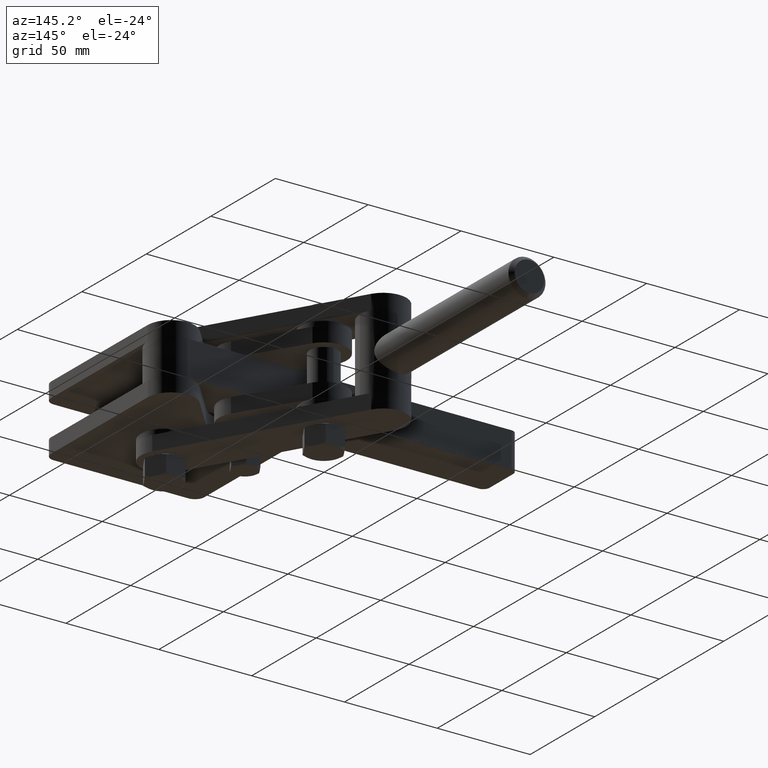
[diagram: clean part render]
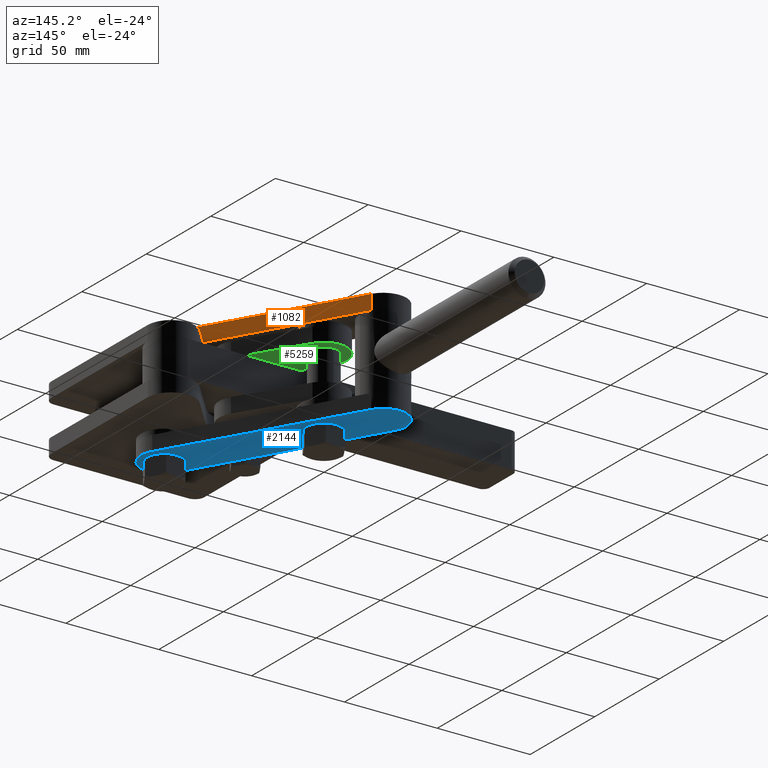
[diagram: same view with three faces highlighted in distinct colors, each labeled with its STEP entity id]
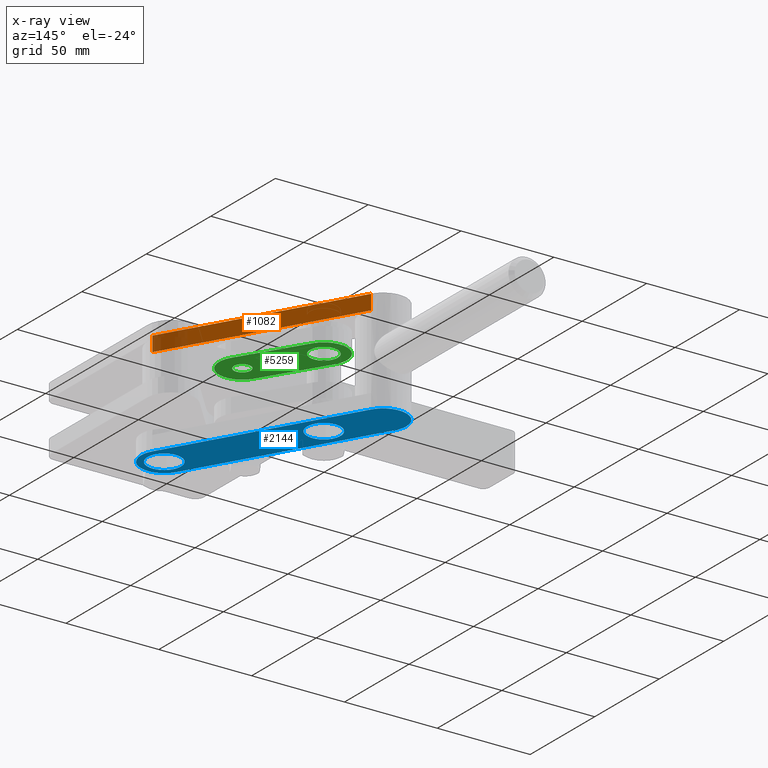
[diagram: x-ray of the same camera — body ghosted, the three highlighted faces saturated]
A machine part, auxiliary view with three faces highlighted in distinct colors.
The next image is the same camera in x-ray (body ghosted, the three faces saturated) — at least one of them is partly hidden behind the body in this view.
Their STEP definitions:

[orange] entity #1082 — the highlighted planar face has unit normal (-0.866, -0.5, -0).
#46 = CARTESIAN_POINT ( 'NONE',  ( 55.82528807929028100, 47.15005103982150600, 18.50000000000000000 ) ) ;
#318 = LINE ( 'NONE', #46, #3210 ) ;
#439 = PLANE ( 'NONE',  #5779 ) ;
#492 = DIRECTION ( 'NONE',  ( -0.5000040831857016600, 0.8660230463432401200, 5.349708482662460800E-017 ) ) ;
#563 = LINE ( 'NONE', #7375, #6339 ) ;
#715 = ORIENTED_EDGE ( 'NONE', *, *, #3984, .F. ) ;
#905 = CARTESIAN_POINT ( 'NONE',  ( 2.324851178420191300, 139.8145169985482100, 18.50000000000000400 ) ) ;
#1082 = ADVANCED_FACE ( 'NONE', ( #5737 ), #439, .F. ) ;
#1366 = EDGE_CURVE ( 'NONE', #7333, #1730, #318, .T. ) ;
#1596 = CARTESIAN_POINT ( 'NONE',  ( 2.324851178420232600, 139.8145169985482700, 10.50000000000000500 ) ) ;
#1730 = VERTEX_POINT ( 'NONE', #2022 ) ;
#2021 = VERTEX_POINT ( 'NONE', #1596 ) ;
#2022 = CARTESIAN_POINT ( 'NONE',  ( 55.82528807929028100, 47.15005103982150600, 10.50000000000000000 ) ) ;
#2106 = CARTESIAN_POINT ( 'NONE',  ( 16.82496959080551900, 114.6998486545942900, 10.50000000000000400 ) ) ;
#2545 = CARTESIAN_POINT ( 'NONE',  ( 55.82528807929028100, 47.15005103982150600, 18.50000000000000000 ) ) ;
#3106 = LINE ( 'NONE', #2545, #3308 ) ;
#3210 = VECTOR ( 'NONE', #4100, 1000.000000000000000 ) ;
#3308 = VECTOR ( 'NONE', #5994, 1000.000000000000200 ) ;
#3517 = ORIENTED_EDGE ( 'NONE', *, *, #7041, .T. ) ;
#3697 = EDGE_LOOP ( 'NONE', ( #3939, #3517, #5484, #715, #6318 ) ) ;
#3754 = VECTOR ( 'NONE', #3821, 1000.000000000000000 ) ;
#3821 = DIRECTION ( 'NONE',  ( 9.264865638541651100E-017, 1.152645899465341200E-016, -1.000000000000000000 ) ) ;
#3874 = DIRECTION ( 'NONE',  ( -0.8660230463432402300, -0.5000040831857017800, -1.378686372624991600E-016 ) ) ;
#3929 = DIRECTION ( 'NONE',  ( -0.5000040831857016600, 0.8660230463432401200, 5.349708482662460800E-017 ) ) ;
#3939 = ORIENTED_EDGE ( 'NONE', *, *, #4718, .T. ) ;
#3958 = CARTESIAN_POINT ( 'NONE',  ( 55.82528807929028100, 47.15005103982150600, 10.50000000000000000 ) ) ;
#3984 = EDGE_CURVE ( 'NONE', #7333, #6692, #3106, .T. ) ;
#4086 = EDGE_CURVE ( 'NONE', #6692, #2021, #5107, .T. ) ;
#4100 = DIRECTION ( 'NONE',  ( 9.264865638541651100E-017, 1.152645899465341200E-016, -1.000000000000000000 ) ) ;
#4464 = CARTESIAN_POINT ( 'NONE',  ( 55.82528807929028100, 47.15005103982150600, 18.50000000000000000 ) ) ;
#4718 = EDGE_CURVE ( 'NONE', #1730, #5053, #563, .T. ) ;
#4905 = VECTOR ( 'NONE', #492, 1000.000000000000200 ) ;
#5053 = VERTEX_POINT ( 'NONE', #2106 ) ;
#5107 = LINE ( 'NONE', #905, #3754 ) ;
#5484 = ORIENTED_EDGE ( 'NONE', *, *, #4086, .F. ) ;
#5737 = FACE_OUTER_BOUND ( 'NONE', #3697, .T. ) ;
#5779 = AXIS2_PLACEMENT_3D ( 'NONE', #4464, #3874, #7317 ) ;
#5858 = CARTESIAN_POINT ( 'NONE',  ( 2.324851178420191300, 139.8145169985482100, 18.50000000000000400 ) ) ;
#5994 = DIRECTION ( 'NONE',  ( -0.5000040831857016600, 0.8660230463432401200, 5.349708482662460800E-017 ) ) ;
#6318 = ORIENTED_EDGE ( 'NONE', *, *, #1366, .T. ) ;
#6339 = VECTOR ( 'NONE', #3929, 1000.000000000000200 ) ;
#6427 = LINE ( 'NONE', #3958, #4905 ) ;
#6692 = VERTEX_POINT ( 'NONE', #5858 ) ;
#6960 = CARTESIAN_POINT ( 'NONE',  ( 55.82528807929028100, 47.15005103982150600, 18.50000000000000000 ) ) ;
#7041 = EDGE_CURVE ( 'NONE', #5053, #2021, #6427, .T. ) ;
#7317 = DIRECTION ( 'NONE',  ( 9.264865638541651100E-017, 1.152645899465341200E-016, -1.000000000000000000 ) ) ;
#7333 = VERTEX_POINT ( 'NONE', #6960 ) ;
#7375 = CARTESIAN_POINT ( 'NONE',  ( 55.82528807929028100, 47.15005103982150600, 10.50000000000000000 ) ) ;

[blue] entity #2144 — the highlighted planar face has unit normal (0, 0, -1).
#34 = CARTESIAN_POINT ( 'NONE',  ( 45.00000000000000000, 40.90000000000005500, -37.50000000000000700 ) ) ;
#124 = CARTESIAN_POINT ( 'NONE',  ( 45.00000000000001400, 40.90000000000000600, -37.50000000000000700 ) ) ;
#261 = DIRECTION ( 'NONE',  ( -0.0000000000000000000, -0.0000000000000000000, 1.000000000000000000 ) ) ;
#335 = CARTESIAN_POINT ( 'NONE',  ( 5.999681511515055000, 108.4497976147729900, -37.50000000000000700 ) ) ;
#450 = EDGE_CURVE ( 'NONE', #7421, #6977, #7386, .T. ) ;
#572 = DIRECTION ( 'NONE',  ( 0.5000040831857014400, -0.8660230463432402300, 0.0000000000000000000 ) ) ;
#584 = CIRCLE ( 'NONE', #4351, 9.000000000000003600 ) ;
#592 = VERTEX_POINT ( 'NONE', #6222 ) ;
#669 = CARTESIAN_POINT ( 'NONE',  ( 34.17471192070951200, 34.64994896017874000, -37.50000000000000700 ) ) ;
#670 = PLANE ( 'NONE',  #7165 ) ;
#687 = VERTEX_POINT ( 'NONE', #3228 ) ;
#698 = DIRECTION ( 'NONE',  ( 0.5000040831857014400, -0.8660230463432402300, 0.0000000000000000000 ) ) ;
#779 = CARTESIAN_POINT ( 'NONE',  ( 45.00000000000000000, 40.90000000000005500, -37.50000000000000700 ) ) ;
#838 = VECTOR ( 'NONE', #572, 1000.000000000000200 ) ;
#840 = CARTESIAN_POINT ( 'NONE',  ( 5.999681511515055000, 108.4497976147729900, -37.50000000000000700 ) ) ;
#912 = DIRECTION ( 'NONE',  ( -0.8660254037844358200, -0.5000000000000050000, 0.0000000000000000000 ) ) ;
#952 = FACE_BOUND ( 'NONE', #1114, .T. ) ;
#991 = DIRECTION ( 'NONE',  ( -0.0000000000000000000, -0.0000000000000000000, 1.000000000000000000 ) ) ;
#994 = EDGE_CURVE ( 'NONE', #2323, #6332, #5468, .T. ) ;
#1038 = CARTESIAN_POINT ( 'NONE',  ( -21.00043690087005300, 133.5644659587267700, -37.50000000000000700 ) ) ;
#1075 = AXIS2_PLACEMENT_3D ( 'NONE', #6250, #2806, #6821 ) ;
#1114 = EDGE_LOOP ( 'NONE', ( #6122, #1984, #3174, #1283, #6118, #7328 ) ) ;
#1150 = ORIENTED_EDGE ( 'NONE', *, *, #450, .F. ) ;
#1183 = CARTESIAN_POINT ( 'NONE',  ( 34.17471192070951200, 34.64994896017874000, -37.50000000000000700 ) ) ;
#1248 = EDGE_CURVE ( 'NONE', #6977, #4270, #1418, .T. ) ;
#1253 = CIRCLE ( 'NONE', #4602, 8.999999999999998200 ) ;
#1283 = ORIENTED_EDGE ( 'NONE', *, *, #6670, .T. ) ;
#1385 = DIRECTION ( 'NONE',  ( -0.8660254037844367100, -0.5000000000000035500, 0.0000000000000000000 ) ) ;
#1418 = LINE ( 'NONE', #3717, #4499 ) ;
#1438 = CARTESIAN_POINT ( 'NONE',  ( 5.999681509480684100, 117.4497976147470400, -37.50000000000000700 ) ) ;
#1440 = CARTESIAN_POINT ( 'NONE',  ( 5.999681511515055000, 108.4497976147729900, -37.50000000000000700 ) ) ;
#1451 = DIRECTION ( 'NONE',  ( -0.8660254037844393700, -0.4999999999999986100, 0.0000000000000000000 ) ) ;
#1464 = ORIENTED_EDGE ( 'NONE', *, *, #994, .F. ) ;
#1500 = AXIS2_PLACEMENT_3D ( 'NONE', #4463, #991, #5024 ) ;
#1523 = CARTESIAN_POINT ( 'NONE',  ( 45.00000000022370000, 31.90000000002601200, -37.49999999998501500 ) ) ;
#1640 = CARTESIAN_POINT ( 'NONE',  ( 37.20577136599056400, 36.39999999991256600, -37.50000000000000700 ) ) ;
#1684 = CARTESIAN_POINT ( 'NONE',  ( 44.99999999796562400, 49.89999999997409900, -37.50000000000000700 ) ) ;
#1728 = VERTEX_POINT ( 'NONE', #6611 ) ;
#1794 = CIRCLE ( 'NONE', #6929, 9.000000000000000000 ) ;
#1798 = AXIS2_PLACEMENT_3D ( 'NONE', #6097, #2645, #6671 ) ;
#1865 = DIRECTION ( 'NONE',  ( -0.0000000000000000000, -0.0000000000000000000, 1.000000000000000000 ) ) ;
#1904 = ORIENTED_EDGE ( 'NONE', *, *, #6037, .T. ) ;
#1980 = DIRECTION ( 'NONE',  ( -0.0000000000000000000, -0.0000000000000000000, 1.000000000000000000 ) ) ;
#1984 = ORIENTED_EDGE ( 'NONE', *, *, #5044, .F. ) ;
#2017 = DIRECTION ( 'NONE',  ( -0.8660254037844384900, -0.5000000000000004400, 0.0000000000000000000 ) ) ;
#2018 = ORIENTED_EDGE ( 'NONE', *, *, #1248, .F. ) ;
#2119 = CIRCLE ( 'NONE', #6902, 9.000000000000000000 ) ;
#2144 = ADVANCED_FACE ( 'NONE', ( #5733, #4034, #952 ), #670, .T. ) ;
#2172 = AXIS2_PLACEMENT_3D ( 'NONE', #3723, #261, #4321 ) ;
#2234 = ORIENTED_EDGE ( 'NONE', *, *, #5528, .T. ) ;
#2323 = VERTEX_POINT ( 'NONE', #3798 ) ;
#2503 = VERTEX_POINT ( 'NONE', #1640 ) ;
#2520 = DIRECTION ( 'NONE',  ( -0.5000040831857014400, 0.8660230463432402300, 0.0000000000000000000 ) ) ;
#2533 = AXIS2_PLACEMENT_3D ( 'NONE', #1440, #5452, #2017 ) ;
#2576 = EDGE_CURVE ( 'NONE', #4715, #7421, #3934, .T. ) ;
#2636 = ORIENTED_EDGE ( 'NONE', *, *, #3675, .T. ) ;
#2645 = DIRECTION ( 'NONE',  ( 0.0000000000000000000, 0.0000000000000000000, -1.000000000000000000 ) ) ;
#2737 = CARTESIAN_POINT ( 'NONE',  ( 45.00000000000000000, 40.90000000000005500, -37.50000000000000700 ) ) ;
#2762 = CARTESIAN_POINT ( 'NONE',  ( 52.79422863498290800, 45.39999999840144100, -37.50000000000000700 ) ) ;
#2806 = DIRECTION ( 'NONE',  ( 0.0000000000000000000, 0.0000000000000000000, 1.000000000000000000 ) ) ;
#2871 = DIRECTION ( 'NONE',  ( 0.0000000000000000000, 0.0000000000000000000, 1.000000000000000000 ) ) ;
#2933 = VERTEX_POINT ( 'NONE', #1038 ) ;
#2943 = DIRECTION ( 'NONE',  ( -0.0000000000000000000, -0.0000000000000000000, 1.000000000000000000 ) ) ;
#3092 = CIRCLE ( 'NONE', #4682, 9.000000000000005300 ) ;
#3138 = VERTEX_POINT ( 'NONE', #7020 ) ;
#3174 = ORIENTED_EDGE ( 'NONE', *, *, #4532, .T. ) ;
#3228 = CARTESIAN_POINT ( 'NONE',  ( 13.79391014493941000, 103.9497976137240400, -37.50000000000000700 ) ) ;
#3249 = AXIS2_PLACEMENT_3D ( 'NONE', #6394, #2943, #6965 ) ;
#3277 = CARTESIAN_POINT ( 'NONE',  ( -8.500436900870056400, 133.5644659587267400, -37.50000000000000700 ) ) ;
#3325 = DIRECTION ( 'NONE',  ( -0.8660254037844393700, -0.4999999999999987200, 0.0000000000000000000 ) ) ;
#3366 = ORIENTED_EDGE ( 'NONE', *, *, #4140, .T. ) ;
#3495 = EDGE_CURVE ( 'NONE', #4762, #6044, #1794, .T. ) ;
#3511 = DIRECTION ( 'NONE',  ( 0.0000000000000000000, 0.0000000000000000000, -1.000000000000000000 ) ) ;
#3550 = EDGE_CURVE ( 'NONE', #3138, #1728, #7187, .T. ) ;
#3558 = EDGE_CURVE ( 'NONE', #1728, #6304, #7380, .T. ) ;
#3675 = EDGE_CURVE ( 'NONE', #7018, #4762, #584, .T. ) ;
#3717 = CARTESIAN_POINT ( 'NONE',  ( 55.82528807929050900, 47.15005103982127100, -37.50000000000000700 ) ) ;
#3723 = CARTESIAN_POINT ( 'NONE',  ( 5.999681511515055000, 108.4497976147729900, -37.50000000000000700 ) ) ;
#3798 = CARTESIAN_POINT ( 'NONE',  ( 52.79422863342435300, 36.39999999895108800, -37.50000000000000700 ) ) ;
#3864 = DIRECTION ( 'NONE',  ( 0.5000040831857012200, -0.8660230463432404500, 0.0000000000000000000 ) ) ;
#3934 = LINE ( 'NONE', #1183, #838 ) ;
#4034 = FACE_OUTER_BOUND ( 'NONE', #5735, .T. ) ;
#4069 = AXIS2_PLACEMENT_3D ( 'NONE', #3277, #7306, #3864 ) ;
#4070 = CARTESIAN_POINT ( 'NONE',  ( 37.20577136565267300, 45.39999999945039400, -37.50000000000000700 ) ) ;
#4140 = EDGE_CURVE ( 'NONE', #2503, #6332, #6274, .T. ) ;
#4184 = DIRECTION ( 'NONE',  ( 0.0000000000000000000, 0.0000000000000000000, -1.000000000000000000 ) ) ;
#4226 = CIRCLE ( 'NONE', #4069, 12.50000000000000200 ) ;
#4270 = VERTEX_POINT ( 'NONE', #5168 ) ;
#4303 = AXIS2_PLACEMENT_3D ( 'NONE', #6881, #2871, #6320 ) ;
#4321 = DIRECTION ( 'NONE',  ( -0.8660254037844411500, -0.4999999999999958400, 0.0000000000000000000 ) ) ;
#4351 = AXIS2_PLACEMENT_3D ( 'NONE', #2737, #6757, #3325 ) ;
#4394 = DIRECTION ( 'NONE',  ( -0.0000000000000000000, -0.0000000000000000000, 1.000000000000000000 ) ) ;
#4463 = CARTESIAN_POINT ( 'NONE',  ( 45.00000000000000000, 40.90000000000005500, -37.50000000000000700 ) ) ;
#4499 = VECTOR ( 'NONE', #2520, 1000.000000000000200 ) ;
#4532 = EDGE_CURVE ( 'NONE', #687, #592, #3092, .T. ) ;
#4602 = AXIS2_PLACEMENT_3D ( 'NONE', #5412, #1980, #5985 ) ;
#4682 = AXIS2_PLACEMENT_3D ( 'NONE', #840, #4893, #1451 ) ;
#4715 = VERTEX_POINT ( 'NONE', #6782 ) ;
#4762 = VERTEX_POINT ( 'NONE', #1684 ) ;
#4834 = DIRECTION ( 'NONE',  ( -0.0000000000000000000, -0.0000000000000000000, 1.000000000000000000 ) ) ;
#4893 = DIRECTION ( 'NONE',  ( -0.0000000000000000000, -0.0000000000000000000, 1.000000000000000000 ) ) ;
#5024 = DIRECTION ( 'NONE',  ( -0.8660254037844383700, -0.5000000000000004400, 0.0000000000000000000 ) ) ;
#5031 = CARTESIAN_POINT ( 'NONE',  ( 55.82528807929050900, 47.15005103982127100, -37.50000000000000700 ) ) ;
#5044 = EDGE_CURVE ( 'NONE', #687, #6304, #5471, .T. ) ;
#5091 = CIRCLE ( 'NONE', #5136, 9.000000000000000000 ) ;
#5136 = AXIS2_PLACEMENT_3D ( 'NONE', #5298, #1865, #5879 ) ;
#5168 = CARTESIAN_POINT ( 'NONE',  ( 2.324851178420444400, 139.8145169985479900, -37.50000000000000700 ) ) ;
#5286 = ORIENTED_EDGE ( 'NONE', *, *, #5910, .F. ) ;
#5298 = CARTESIAN_POINT ( 'NONE',  ( 5.999681511515055000, 108.4497976147729900, -37.50000000000000700 ) ) ;
#5412 = CARTESIAN_POINT ( 'NONE',  ( 45.00000000000000000, 40.90000000000005500, -37.50000000000000700 ) ) ;
#5452 = DIRECTION ( 'NONE',  ( -0.0000000000000000000, -0.0000000000000000000, 1.000000000000000000 ) ) ;
#5468 = CIRCLE ( 'NONE', #5919, 8.999999999999998200 ) ;
#5471 = CIRCLE ( 'NONE', #1798, 9.000000000000000000 ) ;
#5528 = EDGE_CURVE ( 'NONE', #6044, #2503, #1253, .T. ) ;
#5677 = EDGE_CURVE ( 'NONE', #2933, #4715, #4226, .T. ) ;
#5733 = FACE_BOUND ( 'NONE', #6963, .T. ) ;
#5735 = EDGE_LOOP ( 'NONE', ( #1150, #6511, #6389, #5286, #2018 ) ) ;
#5879 = DIRECTION ( 'NONE',  ( -0.8660254037844393700, -0.4999999999999988900, 0.0000000000000000000 ) ) ;
#5910 = EDGE_CURVE ( 'NONE', #4270, #2933, #6895, .T. ) ;
#5919 = AXIS2_PLACEMENT_3D ( 'NONE', #34, #3511, #6947 ) ;
#5985 = DIRECTION ( 'NONE',  ( -0.8660254037844383700, -0.5000000000000004400, 0.0000000000000000000 ) ) ;
#6037 = EDGE_CURVE ( 'NONE', #2323, #7018, #6276, .T. ) ;
#6044 = VERTEX_POINT ( 'NONE', #4070 ) ;
#6097 = CARTESIAN_POINT ( 'NONE',  ( 5.999681511515055000, 108.4497976147729900, -37.50000000000000700 ) ) ;
#6118 = ORIENTED_EDGE ( 'NONE', *, *, #6912, .T. ) ;
#6122 = ORIENTED_EDGE ( 'NONE', *, *, #3558, .T. ) ;
#6222 = CARTESIAN_POINT ( 'NONE',  ( 13.79391014649796400, 112.9497976131743800, -37.50000000000000700 ) ) ;
#6250 = CARTESIAN_POINT ( 'NONE',  ( -8.500436900870056400, 133.5644659587267400, -37.50000000000000700 ) ) ;
#6274 = CIRCLE ( 'NONE', #1500, 8.999999999999998200 ) ;
#6276 = CIRCLE ( 'NONE', #3249, 8.999999999999998200 ) ;
#6304 = VERTEX_POINT ( 'NONE', #6639 ) ;
#6320 = DIRECTION ( 'NONE',  ( 0.5000040831857013300, -0.8660230463432403400, 0.0000000000000000000 ) ) ;
#6332 = VERTEX_POINT ( 'NONE', #1523 ) ;
#6389 = ORIENTED_EDGE ( 'NONE', *, *, #5677, .F. ) ;
#6394 = CARTESIAN_POINT ( 'NONE',  ( 45.00000000000000000, 40.90000000000005500, -37.50000000000000700 ) ) ;
#6511 = ORIENTED_EDGE ( 'NONE', *, *, #2576, .F. ) ;
#6611 = CARTESIAN_POINT ( 'NONE',  ( -1.794547122494382300, 103.9497976146855100, -37.50000000000000700 ) ) ;
#6639 = CARTESIAN_POINT ( 'NONE',  ( 5.999681511738756100, 99.44979761479895300, -37.49999999998501500 ) ) ;
#6670 = EDGE_CURVE ( 'NONE', #592, #6864, #5091, .T. ) ;
#6671 = DIRECTION ( 'NONE',  ( -0.8660254037844384900, -0.5000000000000004400, 0.0000000000000000000 ) ) ;
#6757 = DIRECTION ( 'NONE',  ( -0.0000000000000000000, -0.0000000000000000000, 1.000000000000000000 ) ) ;
#6782 = CARTESIAN_POINT ( 'NONE',  ( -19.32572498016055500, 127.3144149189054700, -37.50000000000000700 ) ) ;
#6821 = DIRECTION ( 'NONE',  ( 0.5000040831857012200, -0.8660230463432404500, 0.0000000000000000000 ) ) ;
#6864 = VERTEX_POINT ( 'NONE', #1438 ) ;
#6881 = CARTESIAN_POINT ( 'NONE',  ( 45.00000000000001400, 40.90000000000000600, -37.50000000000000700 ) ) ;
#6895 = CIRCLE ( 'NONE', #1075, 12.50000000000000200 ) ;
#6902 = AXIS2_PLACEMENT_3D ( 'NONE', #335, #4394, #912 ) ;
#6912 = EDGE_CURVE ( 'NONE', #6864, #3138, #2119, .T. ) ;
#6929 = AXIS2_PLACEMENT_3D ( 'NONE', #779, #4834, #1385 ) ;
#6947 = DIRECTION ( 'NONE',  ( -0.8660254037844383700, -0.5000000000000004400, 0.0000000000000000000 ) ) ;
#6951 = ORIENTED_EDGE ( 'NONE', *, *, #3495, .T. ) ;
#6963 = EDGE_LOOP ( 'NONE', ( #3366, #1464, #1904, #2636, #6951, #2234 ) ) ;
#6965 = DIRECTION ( 'NONE',  ( -0.8660254037844383700, -0.5000000000000004400, 0.0000000000000000000 ) ) ;
#6977 = VERTEX_POINT ( 'NONE', #5031 ) ;
#7018 = VERTEX_POINT ( 'NONE', #2762 ) ;
#7020 = CARTESIAN_POINT ( 'NONE',  ( -1.794547122832266500, 112.9497976142233300, -37.50000000000000700 ) ) ;
#7165 = AXIS2_PLACEMENT_3D ( 'NONE', #124, #4184, #698 ) ;
#7187 = CIRCLE ( 'NONE', #2172, 9.000000000000000000 ) ;
#7306 = DIRECTION ( 'NONE',  ( 0.0000000000000000000, 0.0000000000000000000, 1.000000000000000000 ) ) ;
#7328 = ORIENTED_EDGE ( 'NONE', *, *, #3550, .T. ) ;
#7380 = CIRCLE ( 'NONE', #2533, 9.000000000000000000 ) ;
#7386 = CIRCLE ( 'NONE', #4303, 12.49999999999999500 ) ;
#7421 = VERTEX_POINT ( 'NONE', #669 ) ;

[green] entity #5259 — the highlighted planar face has unit normal (-0, -0, 1).
#330 = DIRECTION ( 'NONE',  ( -0.5224985647159495800, 0.8526401643540918500, 9.857507598320749000E-020 ) ) ;
#431 = CIRCLE ( 'NONE', #5400, 4.500000000000003600 ) ;
#445 = ORIENTED_EDGE ( 'NONE', *, *, #4958, .F. ) ;
#513 = CIRCLE ( 'NONE', #6014, 4.500000000000003600 ) ;
#560 = ORIENTED_EDGE ( 'NONE', *, *, #3593, .F. ) ;
#619 = VERTEX_POINT ( 'NONE', #6741 ) ;
#702 = AXIS2_PLACEMENT_3D ( 'NONE', #4046, #2899, #6919 ) ;
#866 = ORIENTED_EDGE ( 'NONE', *, *, #4618, .F. ) ;
#1014 = CARTESIAN_POINT ( 'NONE',  ( 26.56000003308787400, 70.39840714743922900, 1.295370229051995700E-017 ) ) ;
#1099 = DIRECTION ( 'NONE',  ( 6.907916045658564600E-020, 1.579433432807693600E-019, -1.000000000000000000 ) ) ;
#1145 = CIRCLE ( 'NONE', #2801, 12.49999999999999500 ) ;
#1307 = VECTOR ( 'NONE', #1944, 1000.000000000000000 ) ;
#1323 = VERTEX_POINT ( 'NONE', #3075 ) ;
#1357 = CARTESIAN_POINT ( 'NONE',  ( -4.658320542904112600, 101.9185655558210900, 3.485117133318619300E-015 ) ) ;
#1493 = EDGE_CURVE ( 'NONE', #1323, #3134, #1145, .T. ) ;
#1511 = CARTESIAN_POINT ( 'NONE',  ( 5.999681511515050600, 108.4497976147729900, 1.754337657522241300E-017 ) ) ;
#1593 = VECTOR ( 'NONE', #4239, 1000.000000000000000 ) ;
#1717 = CARTESIAN_POINT ( 'NONE',  ( 16.65768356594817600, 114.9810296737198300, 3.488652754241014300E-015 ) ) ;
#1944 = DIRECTION ( 'NONE',  ( -0.5224985647159494700, 0.8526401643540918500, 9.857507598320115900E-020 ) ) ;
#2007 = DIRECTION ( 'NONE',  ( 6.907916045658564600E-020, 1.579433432807693600E-019, -1.000000000000000000 ) ) ;
#2054 = CARTESIAN_POINT ( 'NONE',  ( 5.999681511515051500, 115.9497976147730000, 1.872795164982818100E-017 ) ) ;
#2057 = EDGE_LOOP ( 'NONE', ( #560, #445 ) ) ;
#2070 = CARTESIAN_POINT ( 'NONE',  ( 26.56000003308787400, 74.89840714743922900, 1.366444733528342100E-017 ) ) ;
#2092 = DIRECTION ( 'NONE',  ( 0.0000000000000000000, 1.000000000000000000, 1.579433432807692900E-019 ) ) ;
#2203 = EDGE_CURVE ( 'NONE', #619, #1323, #3104, .T. ) ;
#2462 = EDGE_CURVE ( 'NONE', #5615, #6117, #4828, .T. ) ;
#2499 = FACE_BOUND ( 'NONE', #3983, .T. ) ;
#2527 = VERTEX_POINT ( 'NONE', #1717 ) ;
#2534 = ORIENTED_EDGE ( 'NONE', *, *, #6677, .F. ) ;
#2632 = DIRECTION ( 'NONE',  ( 0.0000000000000000000, 1.000000000000000000, 1.579433432807690500E-019 ) ) ;
#2671 = ORIENTED_EDGE ( 'NONE', *, *, #2203, .F. ) ;
#2801 = AXIS2_PLACEMENT_3D ( 'NONE', #7239, #3794, #330 ) ;
#2899 = DIRECTION ( 'NONE',  ( -6.907916045658563400E-020, -1.579433432807693600E-019, 1.000000000000000000 ) ) ;
#2994 = CARTESIAN_POINT ( 'NONE',  ( 33.09123209204401700, 64.24040509301079300, 3.481773826090090500E-015 ) ) ;
#3013 = CARTESIAN_POINT ( 'NONE',  ( 26.56000003309464900, 74.89840714743694200, 3.483006014539878400E-015 ) ) ;
#3075 = CARTESIAN_POINT ( 'NONE',  ( 15.90199797866850100, 68.36717508848758500, 3.481238204078680700E-015 ) ) ;
#3104 = LINE ( 'NONE', #1357, #1593 ) ;
#3134 = VERTEX_POINT ( 'NONE', #2994 ) ;
#3178 = CARTESIAN_POINT ( 'NONE',  ( 5.999681511522032600, 108.4497976147704600, 3.486884943779816600E-015 ) ) ;
#3382 = AXIS2_PLACEMENT_3D ( 'NONE', #1511, #5530, #2092 ) ;
#3383 = CIRCLE ( 'NONE', #6293, 12.49999999999999500 ) ;
#3435 = ORIENTED_EDGE ( 'NONE', *, *, #5006, .F. ) ;
#3539 = ORIENTED_EDGE ( 'NONE', *, *, #2462, .F. ) ;
#3555 = CIRCLE ( 'NONE', #3382, 7.500000000000007100 ) ;
#3593 = EDGE_CURVE ( 'NONE', #5872, #6054, #513, .T. ) ;
#3597 = DIRECTION ( 'NONE',  ( -0.5224985647159495800, 0.8526401643540918500, 9.857507598320749000E-020 ) ) ;
#3766 = DIRECTION ( 'NONE',  ( -0.5224985647159495800, 0.8526401643540918500, 9.857507598320749000E-020 ) ) ;
#3774 = ORIENTED_EDGE ( 'NONE', *, *, #1493, .F. ) ;
#3792 = EDGE_LOOP ( 'NONE', ( #3435, #4374, #2534, #3774, #2671 ) ) ;
#3794 = DIRECTION ( 'NONE',  ( -6.907916045658564600E-020, -1.579433432807693600E-019, 1.000000000000000000 ) ) ;
#3983 = EDGE_LOOP ( 'NONE', ( #866, #3539 ) ) ;
#4046 = CARTESIAN_POINT ( 'NONE',  ( 5.999681511522032600, 108.4497976147704600, 3.486884943779816600E-015 ) ) ;
#4114 = CARTESIAN_POINT ( 'NONE',  ( 26.56000003308787400, 79.39840714743922900, 1.437519238004688200E-017 ) ) ;
#4239 = DIRECTION ( 'NONE',  ( 0.5224985647159494700, -0.8526401643540918500, -9.857507598320115900E-020 ) ) ;
#4374 = ORIENTED_EDGE ( 'NONE', *, *, #6780, .F. ) ;
#4564 = CARTESIAN_POINT ( 'NONE',  ( 5.999681511515050600, 108.4497976147729900, 1.754337657522241300E-017 ) ) ;
#4618 = EDGE_CURVE ( 'NONE', #6117, #5615, #3555, .T. ) ;
#4792 = CARTESIAN_POINT ( 'NONE',  ( 37.21800208752079400, 81.42963920638631200, 3.484773825001074900E-015 ) ) ;
#4828 = CIRCLE ( 'NONE', #5325, 7.500000000000007100 ) ;
#4958 = EDGE_CURVE ( 'NONE', #6054, #5872, #431, .T. ) ;
#5006 = EDGE_CURVE ( 'NONE', #2527, #619, #6377, .T. ) ;
#5132 = DIRECTION ( 'NONE',  ( 0.0000000000000000000, 1.000000000000000000, 1.579433432807692900E-019 ) ) ;
#5259 = ADVANCED_FACE ( 'NONE', ( #5575, #7097, #2499 ), #5744, .F. ) ;
#5325 = AXIS2_PLACEMENT_3D ( 'NONE', #4564, #1099, #5132 ) ;
#5400 = AXIS2_PLACEMENT_3D ( 'NONE', #5446, #2007, #6023 ) ;
#5446 = CARTESIAN_POINT ( 'NONE',  ( 26.56000003308787400, 74.89840714743922900, 1.366444733528342100E-017 ) ) ;
#5530 = DIRECTION ( 'NONE',  ( 6.907916045658564600E-020, 1.579433432807693600E-019, -1.000000000000000000 ) ) ;
#5575 = FACE_OUTER_BOUND ( 'NONE', #3792, .T. ) ;
#5615 = VERTEX_POINT ( 'NONE', #2054 ) ;
#5744 = PLANE ( 'NONE',  #702 ) ;
#5872 = VERTEX_POINT ( 'NONE', #1014 ) ;
#5884 = CARTESIAN_POINT ( 'NONE',  ( 5.999681511515050600, 100.9497976147729900, 1.635880150061664100E-017 ) ) ;
#5955 = CARTESIAN_POINT ( 'NONE',  ( 37.21800208752079400, 81.42963920638631200, 3.484773825001074900E-015 ) ) ;
#6014 = AXIS2_PLACEMENT_3D ( 'NONE', #2070, #6080, #2632 ) ;
#6023 = DIRECTION ( 'NONE',  ( 0.0000000000000000000, 1.000000000000000000, 1.579433432807690500E-019 ) ) ;
#6054 = VERTEX_POINT ( 'NONE', #4114 ) ;
#6080 = DIRECTION ( 'NONE',  ( 6.907916045658564600E-020, 1.579433432807693600E-019, -1.000000000000000000 ) ) ;
#6117 = VERTEX_POINT ( 'NONE', #5884 ) ;
#6164 = AXIS2_PLACEMENT_3D ( 'NONE', #3178, #7215, #3766 ) ;
#6172 = VERTEX_POINT ( 'NONE', #4792 ) ;
#6293 = AXIS2_PLACEMENT_3D ( 'NONE', #3013, #7034, #3597 ) ;
#6377 = CIRCLE ( 'NONE', #6164, 12.49999999999999500 ) ;
#6677 = EDGE_CURVE ( 'NONE', #3134, #6172, #3383, .T. ) ;
#6741 = CARTESIAN_POINT ( 'NONE',  ( -4.658320542904112600, 101.9185655558210900, 3.485117133318619300E-015 ) ) ;
#6780 = EDGE_CURVE ( 'NONE', #6172, #2527, #7249, .T. ) ;
#6919 = DIRECTION ( 'NONE',  ( -0.5224985647159494700, 0.8526401643540918500, 9.857507598320115900E-020 ) ) ;
#7034 = DIRECTION ( 'NONE',  ( -6.907916045658564600E-020, -1.579433432807693600E-019, 1.000000000000000000 ) ) ;
#7097 = FACE_BOUND ( 'NONE', #2057, .T. ) ;
#7215 = DIRECTION ( 'NONE',  ( -6.907916045658564600E-020, -1.579433432807693600E-019, 1.000000000000000000 ) ) ;
#7239 = CARTESIAN_POINT ( 'NONE',  ( 26.56000003309464900, 74.89840714743694200, 3.483006014539878400E-015 ) ) ;
#7249 = LINE ( 'NONE', #5955, #1307 ) ;